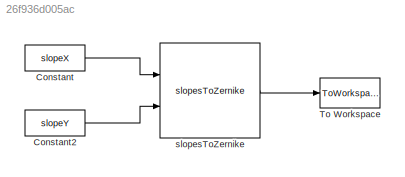
MODEL slx_26f936d005ac
KIND model
BLOCK [Constant] Constant
  Value = slopeX
BLOCK [Constant] Constant2
  Value = slopeY
BLOCK [ToWorkspace] To Workspace
  MaxDataPoints = inf
  Ports = [1]
  SampleTime = -1
  SaveFormat = Timeseries
  VariableName = zernike
BLOCK [Reference] slopesToZernike  REF=rtai_devices/slopesToZernike
  Ports = [2, 1]
  SourceBlock = rtai_devices/slopesToZernike
  nbSlopes = 196
  nbZernike = orderZ
LINE Constant2:1 -> slopesToZernike:2
LINE Constant:1 -> slopesToZernike:1
LINE slopesToZernike:1 -> To Workspace:1
